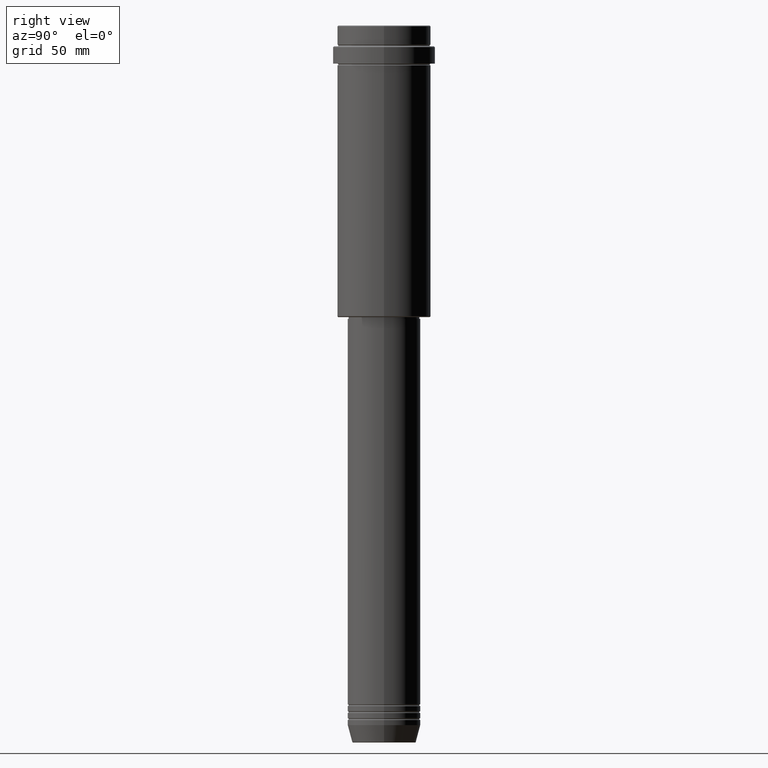
[diagram: clean part render]
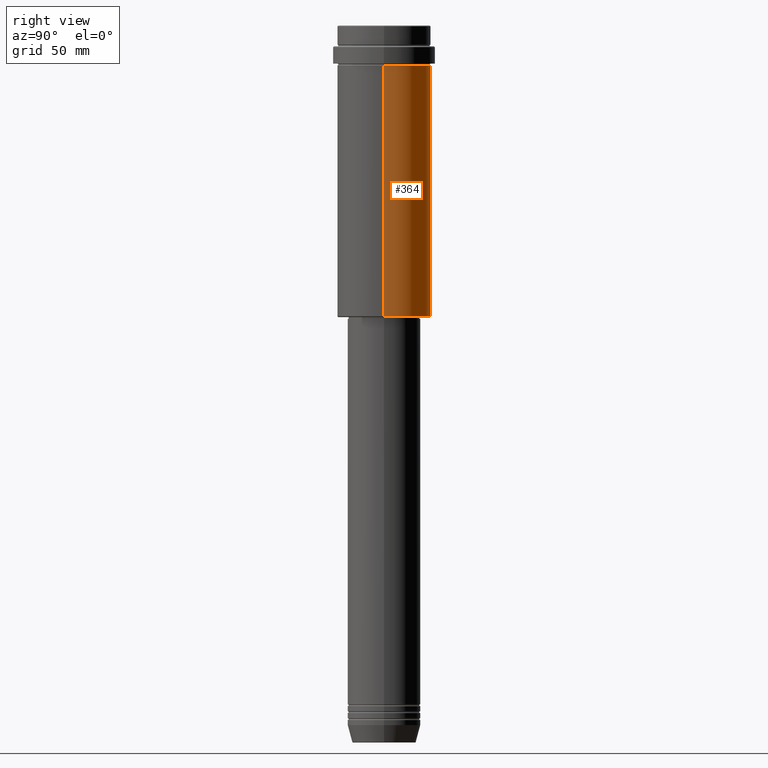
[diagram: same view with one face highlighted and labeled with its STEP entity id]
A machine part, right view. The second image highlights one B-rep face of the part: STEP entity #364.
In plain terms, the highlighted cylindrical surface (partial cylindrical patch) has radius 27 mm, axis along (-0, -0, 1).
Its self-contained STEP definition (entity closure, byte-faithful):
#60 = LINE ( 'NONE', #471, #1306 ) ;
#85 = DIRECTION ( 'NONE',  ( -1.000000000000000000, 0.000000000000000000, 0.000000000000000000 ) ) ;
#86 = DIRECTION ( 'NONE',  ( -0.000000000000000000, -0.000000000000000000, 1.000000000000000000 ) ) ;
#88 = DIRECTION ( 'NONE',  ( 1.000000000000000000, 0.000000000000000000, 0.000000000000000000 ) ) ;
#168 = VERTEX_POINT ( 'NONE', #1180 ) ;
#189 = DIRECTION ( 'NONE',  ( -0.000000000000000000, -0.000000000000000000, 1.000000000000000000 ) ) ;
#205 = CARTESIAN_POINT ( 'NONE',  ( 27.00000000000000355, 0.000000000000000000, -167.5000000000000568 ) ) ;
#257 = ORIENTED_EDGE ( 'NONE', *, *, #1154, .F. ) ;
#285 = VECTOR ( 'NONE', #1337, 1000.000000000000000 ) ;
#287 = AXIS2_PLACEMENT_3D ( 'NONE', #627, #1042, #85 ) ;
#295 = EDGE_CURVE ( 'NONE', #168, #905, #381, .T. ) ;
#296 = CARTESIAN_POINT ( 'NONE',  ( 0.000000000000000000, 0.000000000000000000, -23.00000000000001421 ) ) ;
#305 = CYLINDRICAL_SURFACE ( 'NONE', #446, 27.00000000000000355 ) ;
#355 = DIRECTION ( 'NONE',  ( -0.000000000000000000, -0.000000000000000000, 1.000000000000000000 ) ) ;
#358 = CARTESIAN_POINT ( 'NONE',  ( -27.00000000000000355, 3.306546357697854128E-15, 0.000000000000000000 ) ) ;
#364 = ADVANCED_FACE ( 'NONE', ( #1393 ), #305, .T. ) ;
#381 = LINE ( 'NONE', #358, #285 ) ;
#423 = EDGE_CURVE ( 'NONE', #720, #168, #1053, .T. ) ;
#446 = AXIS2_PLACEMENT_3D ( 'NONE', #1270, #189, #88 ) ;
#471 = CARTESIAN_POINT ( 'NONE',  ( 27.00000000000000355, 0.000000000000000000, 0.000000000000000000 ) ) ;
#475 = CIRCLE ( 'NONE', #1283, 27.00000000000000355 ) ;
#627 = CARTESIAN_POINT ( 'NONE',  ( 0.000000000000000000, 0.000000000000000000, -167.5000000000000568 ) ) ;
#697 = CARTESIAN_POINT ( 'NONE',  ( 27.00000000000000355, 0.000000000000000000, -23.00000000000001421 ) ) ;
#714 = ORIENTED_EDGE ( 'NONE', *, *, #423, .T. ) ;
#715 = EDGE_CURVE ( 'NONE', #840, #905, #475, .T. ) ;
#720 = VERTEX_POINT ( 'NONE', #205 ) ;
#840 = VERTEX_POINT ( 'NONE', #697 ) ;
#905 = VERTEX_POINT ( 'NONE', #1249 ) ;
#928 = ORIENTED_EDGE ( 'NONE', *, *, #295, .T. ) ;
#1042 = DIRECTION ( 'NONE',  ( -0.000000000000000000, -0.000000000000000000, 1.000000000000000000 ) ) ;
#1053 = CIRCLE ( 'NONE', #287, 27.00000000000000355 ) ;
#1128 = ORIENTED_EDGE ( 'NONE', *, *, #715, .F. ) ;
#1154 = EDGE_CURVE ( 'NONE', #720, #840, #60, .T. ) ;
#1171 = DIRECTION ( 'NONE',  ( 1.000000000000000000, 0.000000000000000000, 0.000000000000000000 ) ) ;
#1180 = CARTESIAN_POINT ( 'NONE',  ( -27.00000000000000355, 3.306546357697854128E-15, -167.5000000000000568 ) ) ;
#1198 = EDGE_LOOP ( 'NONE', ( #714, #928, #1128, #257 ) ) ;
#1249 = CARTESIAN_POINT ( 'NONE',  ( -27.00000000000000355, 3.306546357697854128E-15, -23.00000000000001421 ) ) ;
#1270 = CARTESIAN_POINT ( 'NONE',  ( 0.000000000000000000, 0.000000000000000000, 0.000000000000000000 ) ) ;
#1283 = AXIS2_PLACEMENT_3D ( 'NONE', #296, #86, #1171 ) ;
#1306 = VECTOR ( 'NONE', #355, 1000.000000000000000 ) ;
#1337 = DIRECTION ( 'NONE',  ( -0.000000000000000000, -0.000000000000000000, 1.000000000000000000 ) ) ;
#1393 = FACE_OUTER_BOUND ( 'NONE', #1198, .T. ) ;